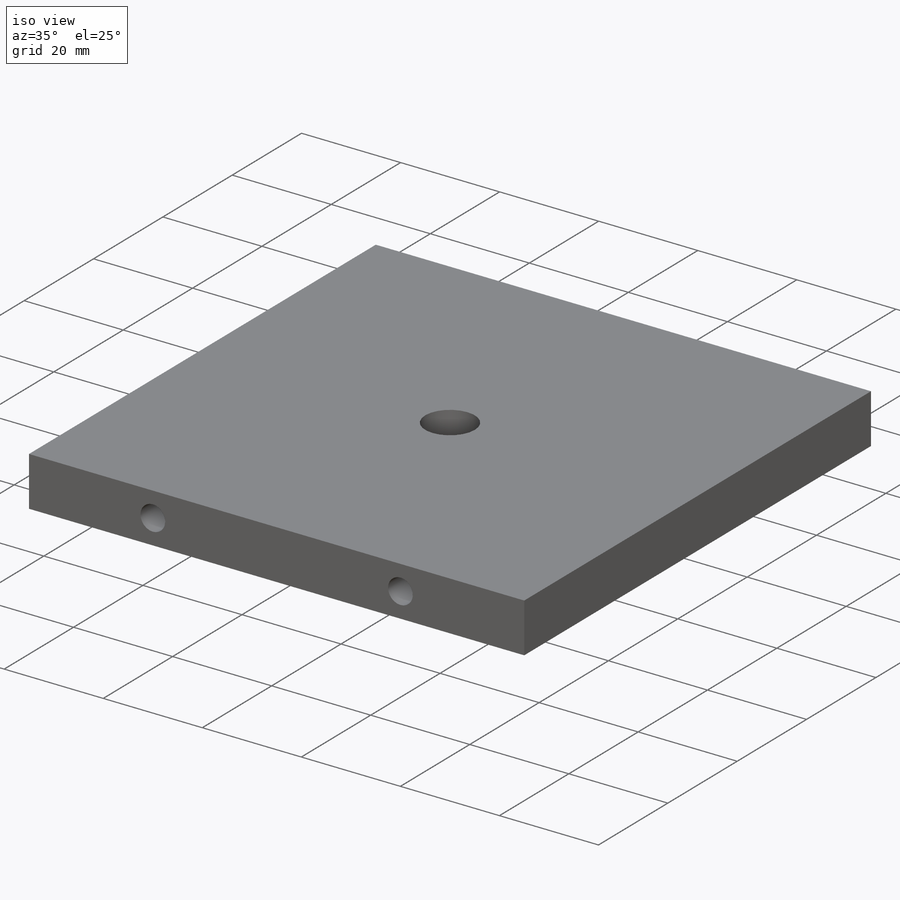
[diagram: iso view]
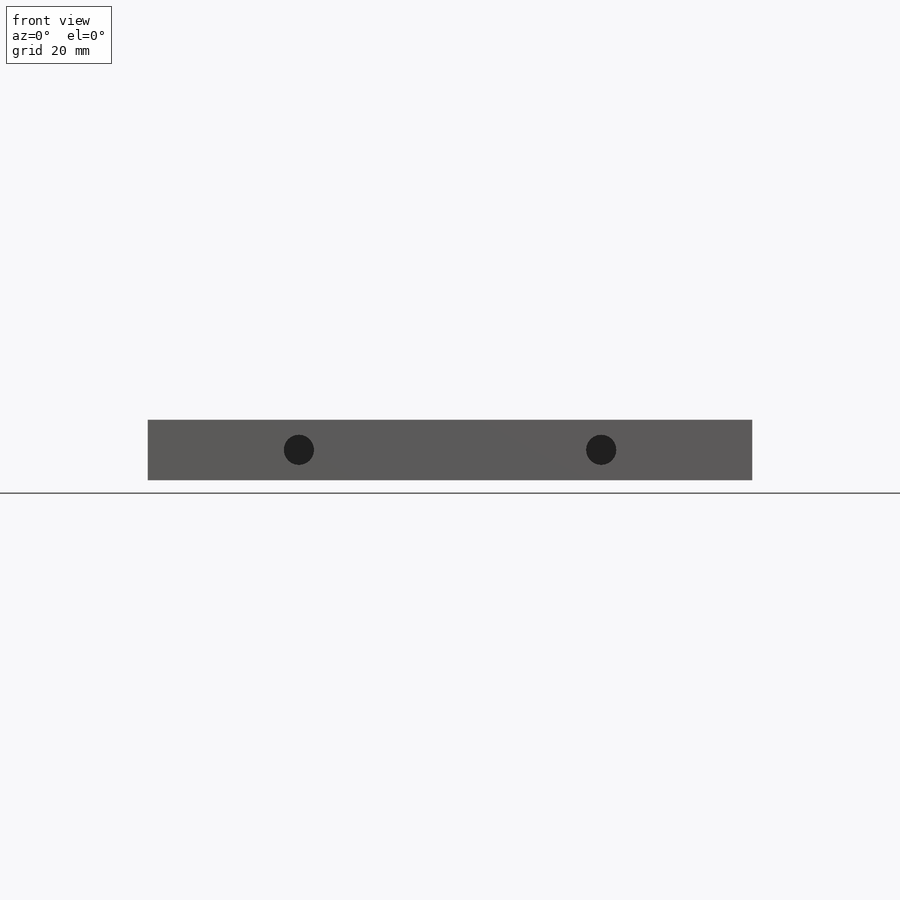
[diagram: front view]
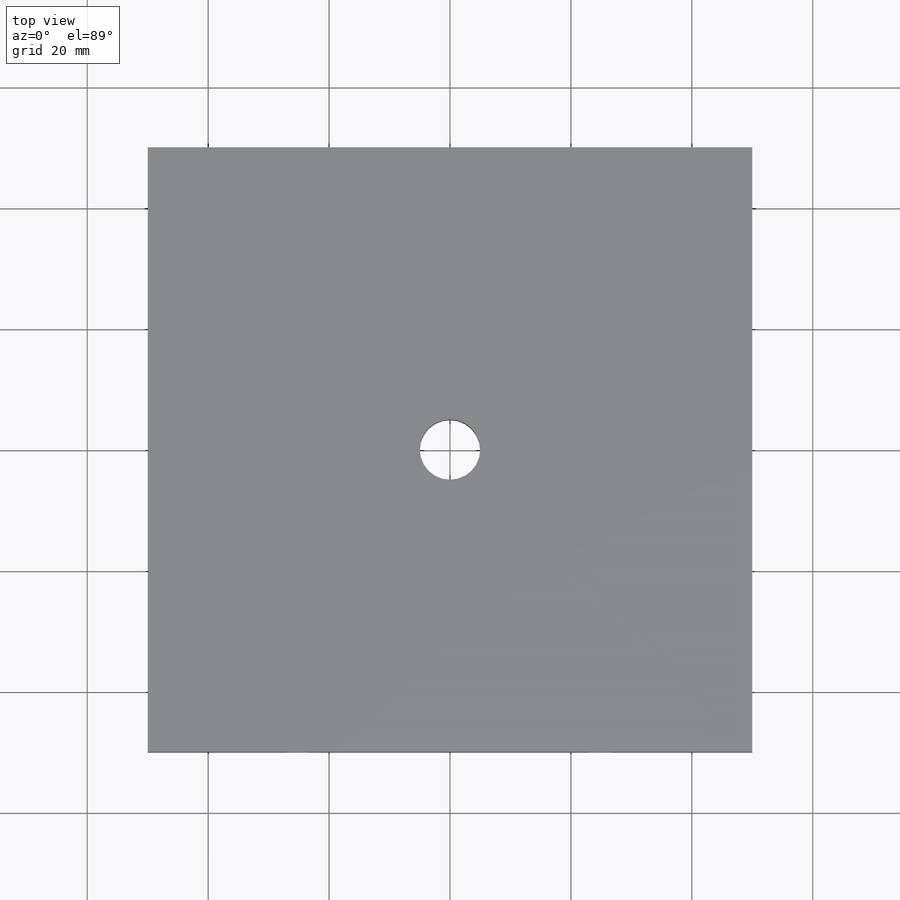
[diagram: top view]
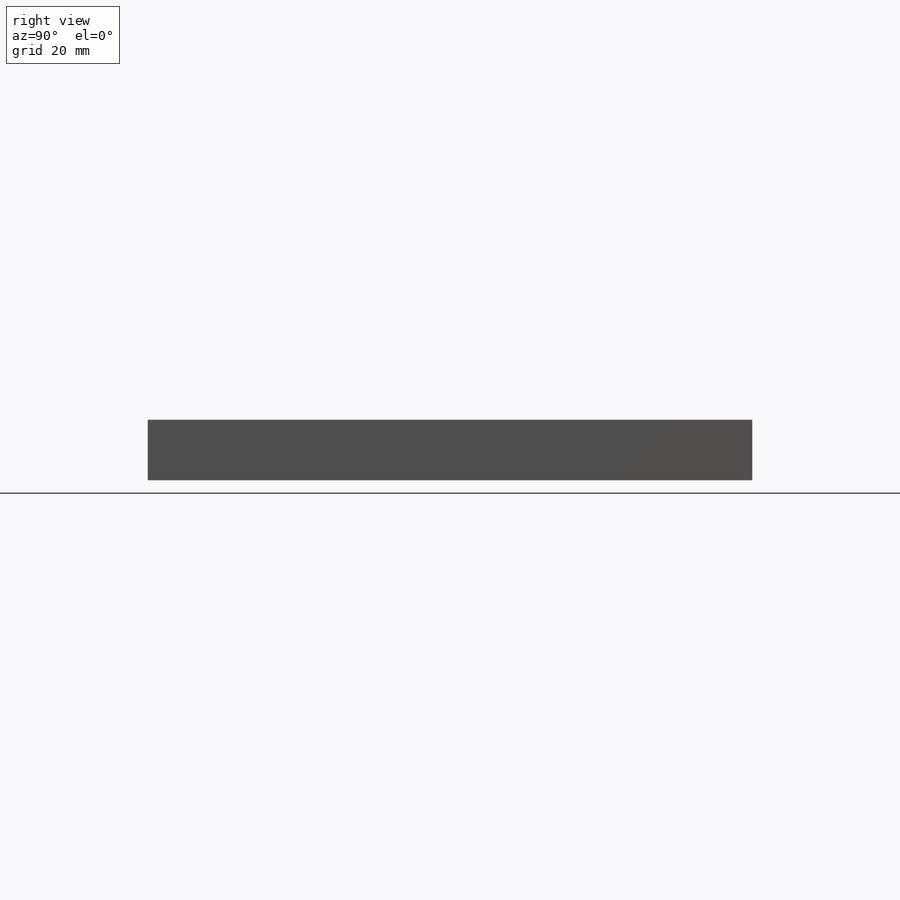
[diagram: right view]
SOLIDWORKS PART (.sldprt)
format: sldprt  version: not decoded by parser v0  size: 206,848 bytes
history: native  units: mm
features: sketch x4, plane x3, cut_extrude x3, material x1, extrude x1 (+9 scaffold rows collapsed)
feature tree (21):
  scaffold x9  (default folders/planes/origin — collapsed)
  material  "Материал <не указан>"
  plane  "Спереди"
  plane  "Сверху"
  plane  "Справа"
  sketch  "Эскиз1"  dims[c1.D1=100.0mm c1.D2=100.0mm c2.D1=100.0mm]
  extrude  "Бобышка-Вытянуть1"  Depth=10mm
  sketch  "Эскиз2"  dims[c1.D3=5.0mm c1.D4=5.0mm c1.D1=50.0mm c1.D2=50.0mm c2.D3=~18.011706mm]
  cut_extrude  "Вырез-Вытянуть1"  Depth=10mm
  sketch  "Эскиз3"  dims[c1.D3=5.0mm c1.D4=5.0mm c1.D1=50.0mm c1.D2=50.0mm c2.D3=~25.922789mm]
  cut_extrude  "Вырез-Вытянуть2"  Depth=10mm
  sketch  "Эскиз4"  dims[D1=10.0mm]
  cut_extrude  "Вырез-Вытянуть3"  [1 undecoded]
decode coverage: 7 of 8 modeling features carry decoded parameters
note: ~ marks probable driven/reference dimensions
note: 1 parameter value undecoded
note: suppression state not decoded; provenance and decode notes live in map.json
